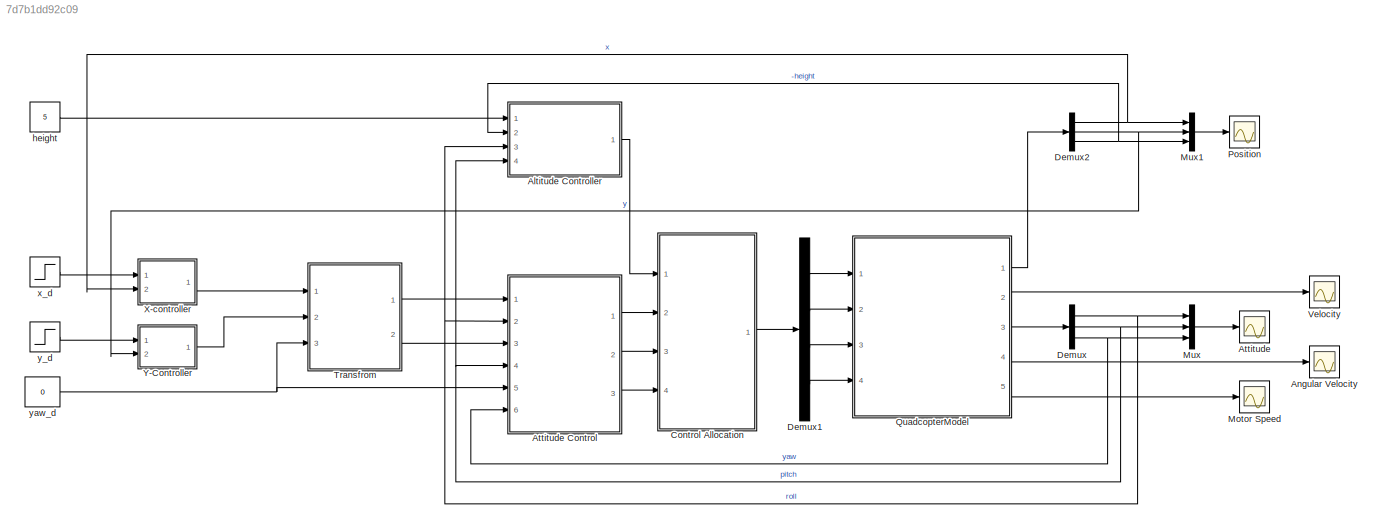
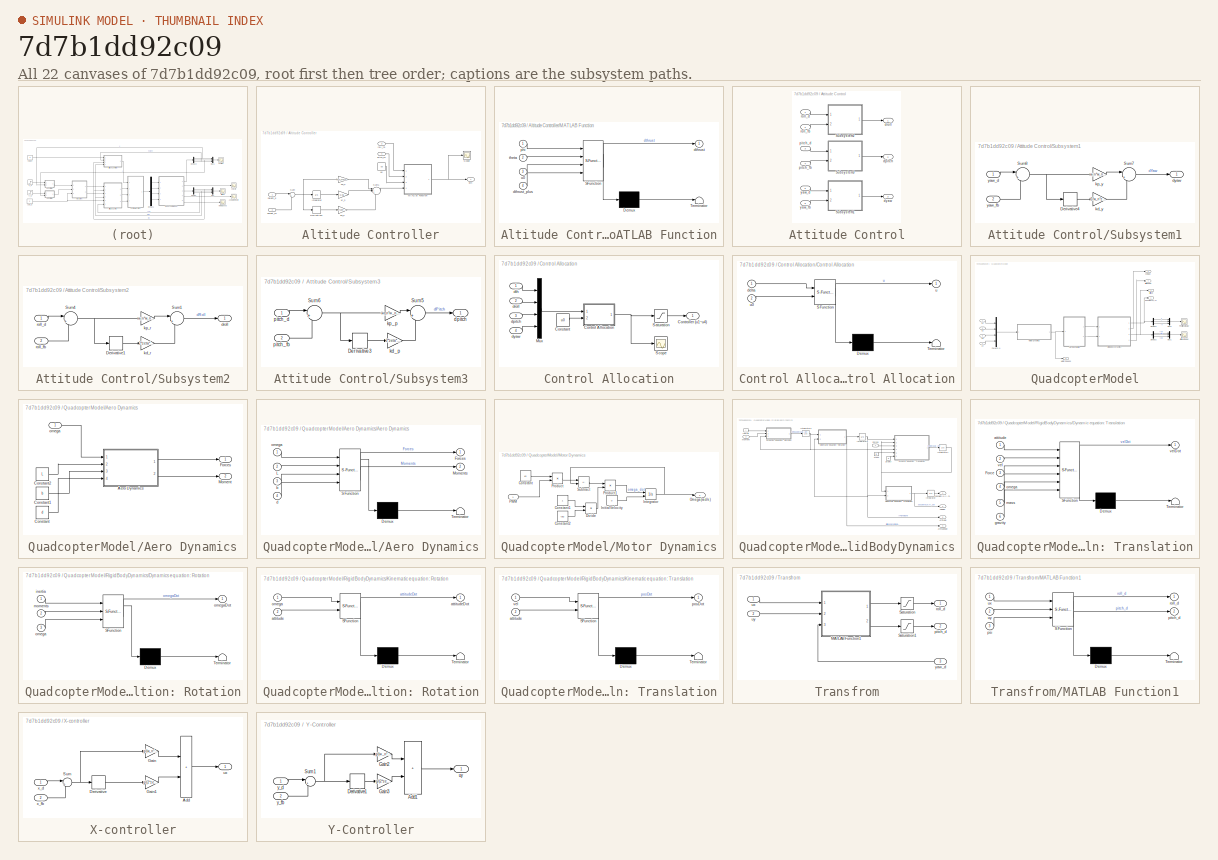
[diagram: thumbnail index - all 22 canvases of the model, root first then tree order]
MODEL slx_7d7b1dd92c09
KIND model
CONFIG AbsTol = auto
CONFIG EnableMultiTasking = off
CONFIG FixedStep = auto
CONFIG InitFcn = parameters
CONFIG MaxStep = auto
CONFIG MinStep = auto
CONFIG RelTol = 1e-3
CONFIG SampleTimeConstraint = Unconstrained
CONFIG Solver = VariableStepAuto
CONFIG SolverName = VariableStepAuto
CONFIG StartTime = 0.0
CONFIG StopTime = 50
BLOCK [SubSystem] Altitude Controller
  Ports = [4, 1]
  RequestExecContextInheritance = off
BLOCK [Derivative] Altitude Controller/Derivative1
BLOCK [Integrator] Altitude Controller/Integrator
  Ports = [1, 1]
BLOCK [SubSystem] Altitude Controller/MATLAB Function
  ErrorFcn = Stateflow.Translate.translate
  PermitHierarchicalResolution = ExplicitOnly
  Ports = [4, 1]
  RequestExecContextInheritance = off
  SFBlockType = MATLAB Function
  TreatAsAtomicUnit = on
BLOCK [Demux] Altitude Controller/MATLAB Function/ Demux 
  Outputs = 1
  Ports = [1, 1]
BLOCK [S-Function] Altitude Controller/MATLAB Function/ SFunction 
  EnableBusSupport = on
  FunctionName = sf_sfun
  PortCounts = [4 2]
  Ports = [4, 2]
  SFcnIsStateOwnerBlock = off
  SFunctionDeploymentMode = off
  Tag = Stateflow S-Function QuadcopterController 4
BLOCK [Terminator] Altitude Controller/MATLAB Function/ Terminator 
BLOCK [Outport] Altitude Controller/MATLAB Function/dthrust
BLOCK [Inport] Altitude Controller/MATLAB Function/dthrust_plus
  Port = 4
BLOCK [Inport] Altitude Controller/MATLAB Function/phi
BLOCK [Inport] Altitude Controller/MATLAB Function/theta
  Port = 2
BLOCK [Inport] Altitude Controller/MATLAB Function/u0
  Port = 3
BLOCK [Scope] Altitude Controller/Scope
  Floating = off
  NumInputPorts = 1
  Ports = [1]
  ScopeSpecificationString = Simulink.scopes.TimeScopeBlockCfg('CurrentConfiguration', extmgr.ConfigurationSet(extmgr.Configuration('Core','General UI',true),extmgr.Configuration('Core','Source UI',true),extmgr.Configuration('Sources','WiredSimulink',true,'DataLoggingVariableName','ScopeData3'),extmgr.Configuration('Visuals','Time Domain',true,'SerializedDisplays',{struct('MinYLimReal','-0.03743','MaxYLimReal','1.12127','YLab...<+1374ch>
BLOCK [Sum] Altitude Controller/Sum
  Inputs = |++
  Ports = [2, 1]
BLOCK [Sum] Altitude Controller/Sum1
  Inputs = |+++
  Ports = [3, 1]
BLOCK [Outport] Altitude Controller/dth
BLOCK [Inport] Altitude Controller/height_d
BLOCK [Inport] Altitude Controller/height_fb
  Port = 2
BLOCK [Gain] Altitude Controller/kd_h
  Gain = 2*kxih*wh_n*m/(4*Kth)
BLOCK [Gain] Altitude Controller/ki_h
  Gain = 0.05
BLOCK [Gain] Altitude Controller/kp_h
  Gain = wh_n*wh_n*m/(4*Kth)
BLOCK [Inport] Altitude Controller/pitch_fb
  Port = 4
BLOCK [Inport] Altitude Controller/roll_fb
  Port = 3
BLOCK [Constant] Altitude Controller/u0
  Value = u0
BLOCK [Scope] Angular Velocity
  Floating = off
  NumInputPorts = 1
  Ports = [1]
  ScopeSpecificationString = Simulink.scopes.TimeScopeBlockCfg('CurrentConfiguration', extmgr.ConfigurationSet(extmgr.Configuration('Core','General UI',true),extmgr.Configuration('Core','Source UI',true),extmgr.Configuration('Sources','WiredSimulink',true,'DataLoggingVariableName','ScopeData1'),extmgr.Configuration('Visuals','Time Domain',true,'SerializedDisplays',{struct('MinYLimReal','-3.62848','MaxYLimReal','3.09906','YLab...<+1605ch>
BLOCK [Scope] Attitude
  Floating = off
  NumInputPorts = 1
  Ports = [1]
  ScopeSpecificationString = Simulink.scopes.TimeScopeBlockCfg('CurrentConfiguration', extmgr.ConfigurationSet(extmgr.Configuration('Core','General UI',true),extmgr.Configuration('Core','Source UI',true),extmgr.Configuration('Sources','WiredSimulink',true),extmgr.Configuration('Visuals','Time Domain',true,'SerializedDisplays',{struct('MinYLimReal','-0.39193','MaxYLimReal','0.43434','YLabelReal','','MinYLimMag','0.00000','MaxY...<+1409ch>
BLOCK [SubSystem] Attitude Control
  Ports = [6, 3]
  RequestExecContextInheritance = off
BLOCK [SubSystem] Attitude Control/Subsystem1
  Ports = [2, 1]
  RequestExecContextInheritance = off
BLOCK [Derivative] Attitude Control/Subsystem1/Derivative4
BLOCK [Sum] Attitude Control/Subsystem1/Sum7
  Inputs = |++
  Ports = [2, 1]
BLOCK [Sum] Attitude Control/Subsystem1/Sum8
  Inputs = |+-
  Ports = [2, 1]
BLOCK [Outport] Attitude Control/Subsystem1/dyaw
BLOCK [Gain] Attitude Control/Subsystem1/kd_y
  Gain = 2*w_n*zeta*Iz/(4*d*lambda)
BLOCK [Gain] Attitude Control/Subsystem1/kp_y
  Gain = w_n*w_n*Iz/(4*d*lambda)
BLOCK [Inport] Attitude Control/Subsystem1/yaw_d
BLOCK [Inport] Attitude Control/Subsystem1/yaw_fb
  Port = 2
BLOCK [SubSystem] Attitude Control/Subsystem2
  Ports = [2, 1]
  RequestExecContextInheritance = off
BLOCK [Derivative] Attitude Control/Subsystem2/Derivative1
BLOCK [Sum] Attitude Control/Subsystem2/Sum1
  Inputs = |++
  Ports = [2, 1]
BLOCK [Sum] Attitude Control/Subsystem2/Sum4
  Inputs = |+-
  Ports = [2, 1]
BLOCK [Outport] Attitude Control/Subsystem2/droll
BLOCK [Gain] Attitude Control/Subsystem2/kd_r
  Gain = 2*zeta*w_n*Ix/(2*Kth*L)
BLOCK [Gain] Attitude Control/Subsystem2/kp_r
  Gain = w_n*w_n*Ix/(2*Kth*L)
BLOCK [Inport] Attitude Control/Subsystem2/roll_d
BLOCK [Inport] Attitude Control/Subsystem2/roll_fb
  Port = 2
BLOCK [SubSystem] Attitude Control/Subsystem3
  Ports = [2, 1]
  RequestExecContextInheritance = off
BLOCK [Derivative] Attitude Control/Subsystem3/Derivative3
BLOCK [Sum] Attitude Control/Subsystem3/Sum5
  Inputs = |++
  Ports = [2, 1]
BLOCK [Sum] Attitude Control/Subsystem3/Sum6
  Inputs = |+-
  Ports = [2, 1]
BLOCK [Outport] Attitude Control/Subsystem3/dpitch
BLOCK [Gain] Attitude Control/Subsystem3/kd_p
  Gain = 2*zeta*w_n*Iy/(2*Kth*L)
BLOCK [Gain] Attitude Control/Subsystem3/kp_p
  Gain = w_n*w_n*Iy/(2*Kth*L)
BLOCK [Inport] Attitude Control/Subsystem3/pitch_d
BLOCK [Inport] Attitude Control/Subsystem3/pitch_fb
  Port = 2
BLOCK [Outport] Attitude Control/dpitch
  Port = 2
BLOCK [Outport] Attitude Control/droll
BLOCK [Outport] Attitude Control/dyaw
  Port = 3
BLOCK [Inport] Attitude Control/pitch_d
  Port = 3
BLOCK [Inport] Attitude Control/pitch_fb
  Port = 4
BLOCK [Inport] Attitude Control/roll_d
BLOCK [Inport] Attitude Control/roll_fb
  Port = 2
BLOCK [Inport] Attitude Control/yaw_d
  Port = 5
BLOCK [Inport] Attitude Control/yaw_fb
  Port = 6
BLOCK [SubSystem] Control Allocation
  Ports = [4, 1]
  RequestExecContextInheritance = off
BLOCK [Constant] Control Allocation/Constant
  Value = u0
BLOCK [SubSystem] Control Allocation/Control Allocation
  ErrorFcn = Stateflow.Translate.translate
  PermitHierarchicalResolution = ExplicitOnly
  Ports = [2, 1]
  RequestExecContextInheritance = off
  SFBlockType = MATLAB Function
  TreatAsAtomicUnit = on
BLOCK [Demux] Control Allocation/Control Allocation/ Demux 
  Outputs = 1
  Ports = [1, 1]
BLOCK [S-Function] Control Allocation/Control Allocation/ SFunction 
  EnableBusSupport = on
  FunctionName = sf_sfun
  PortCounts = [2 2]
  Ports = [2, 2]
  SFcnIsStateOwnerBlock = off
  SFunctionDeploymentMode = off
  Tag = Stateflow S-Function QuadcopterController 3
BLOCK [Terminator] Control Allocation/Control Allocation/ Terminator 
BLOCK [Inport] Control Allocation/Control Allocation/delta
BLOCK [Outport] Control Allocation/Control Allocation/u
BLOCK [Inport] Control Allocation/Control Allocation/u0
  Port = 2
BLOCK [Outport] Control Allocation/Controller (u1~u4)
BLOCK [Mux] Control Allocation/Mux
  DisplayOption = bar
  Ports = [4, 1]
BLOCK [Saturate] Control Allocation/Saturation
  LowerLimit = 0
  UpperLimit = 1
  ZeroCross = off
BLOCK [Scope] Control Allocation/Scope
  Floating = off
  NumInputPorts = 1
  Ports = [1]
  ScopeSpecificationString = Simulink.scopes.TimeScopeBlockCfg('CurrentConfiguration', extmgr.ConfigurationSet(extmgr.Configuration('Core','General UI',true),extmgr.Configuration('Core','Source UI',true),extmgr.Configuration('Sources','WiredSimulink',true,'DataLoggingVariableName','ScopeData2'),extmgr.Configuration('Visuals','Time Domain',true,'SerializedDisplays',{struct('MinYLimReal','0.144','MaxYLimReal','2.75506','YLabelR...<+1490ch>
BLOCK [Inport] Control Allocation/dpitch
  Port = 3
BLOCK [Inport] Control Allocation/droll
  Port = 2
BLOCK [Inport] Control Allocation/dth
BLOCK [Inport] Control Allocation/dyaw
  Port = 4
BLOCK [Demux] Demux
  Outputs = 3
  Ports = [1, 3]
BLOCK [Demux] Demux1
  Ports = [1, 4]
BLOCK [Demux] Demux2
  Outputs = 3
  Ports = [1, 3]
BLOCK [Scope] Motor Speed
  Floating = off
  NumInputPorts = 1
  Ports = [1]
  ScopeSpecificationString = Simulink.scopes.TimeScopeBlockCfg('CurrentConfiguration', extmgr.ConfigurationSet(extmgr.Configuration('Core','General UI',true),extmgr.Configuration('Core','Source UI',true),extmgr.Configuration('Sources','WiredSimulink',true,'DataLoggingVariableName','ScopeData1'),extmgr.Configuration('Visuals','Time Domain',true,'SerializedDisplays',{struct('MinYLimReal','192.09255','MaxYLimReal','712.96711','Y...<+1620ch>
BLOCK [Mux] Mux
  DisplayOption = bar
  Inputs = 3
  Ports = [3, 1]
BLOCK [Mux] Mux1
  DisplayOption = bar
  Inputs = 3
  Ports = [3, 1]
BLOCK [Scope] Position
  Floating = off
  NumInputPorts = 1
  Ports = [1]
  ScopeSpecificationString = Simulink.scopes.TimeScopeBlockCfg('CurrentConfiguration', extmgr.ConfigurationSet(extmgr.Configuration('Core','General UI',true),extmgr.Configuration('Core','Source UI',true),extmgr.Configuration('Sources','WiredSimulink',true,'DataLoggingVariableName','ScopeData3'),extmgr.Configuration('Visuals','Time Domain',true,'SerializedDisplays',{struct('MinYLimReal','-6.62269','MaxYLimReal','8.51292','YLab...<+1447ch>
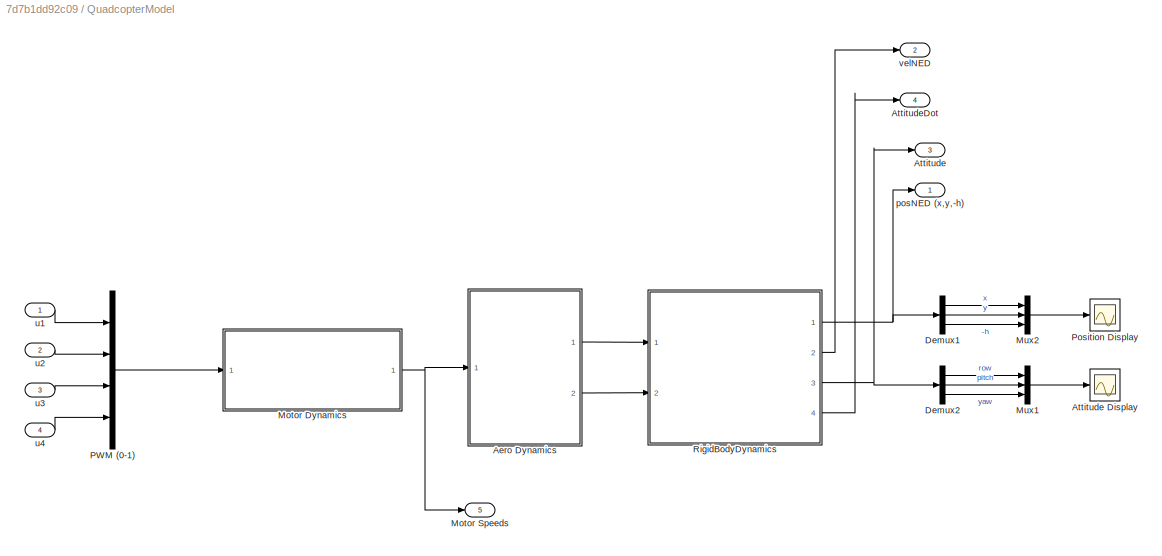
BLOCK [SubSystem] QuadcopterModel
  Ports = [4, 5]
  RequestExecContextInheritance = off
BLOCK [SubSystem] QuadcopterModel/Aero Dynamics
  Ports = [1, 2]
  RequestExecContextInheritance = off
BLOCK [SubSystem] QuadcopterModel/Aero Dynamics/Aero Dynamics
  ErrorFcn = Stateflow.Translate.translate
  PermitHierarchicalResolution = ExplicitOnly
  Ports = [4, 2]
  RequestExecContextInheritance = off
  SFBlockType = MATLAB Function
  TreatAsAtomicUnit = on
BLOCK [Demux] QuadcopterModel/Aero Dynamics/Aero Dynamics/ Demux 
  Outputs = 1
  Ports = [1, 1]
BLOCK [S-Function] QuadcopterModel/Aero Dynamics/Aero Dynamics/ SFunction 
  EnableBusSupport = on
  FunctionName = sf_sfun
  PortCounts = [4 3]
  Ports = [4, 3]
  SFcnIsStateOwnerBlock = off
  SFunctionDeploymentMode = off
  Tag = Stateflow S-Function QuadcopterController 1
BLOCK [Terminator] QuadcopterModel/Aero Dynamics/Aero Dynamics/ Terminator 
BLOCK [Outport] QuadcopterModel/Aero Dynamics/Aero Dynamics/Forces
BLOCK [Inport] QuadcopterModel/Aero Dynamics/Aero Dynamics/L
  Port = 2
BLOCK [Outport] QuadcopterModel/Aero Dynamics/Aero Dynamics/Moments
  Port = 2
BLOCK [Inport] QuadcopterModel/Aero Dynamics/Aero Dynamics/b
  Port = 3
BLOCK [Inport] QuadcopterModel/Aero Dynamics/Aero Dynamics/d
  Port = 4
BLOCK [Inport] QuadcopterModel/Aero Dynamics/Aero Dynamics/omega
BLOCK [Constant] QuadcopterModel/Aero Dynamics/Constant
  Value = d
BLOCK [Constant] QuadcopterModel/Aero Dynamics/Constant1
  Value = b
BLOCK [Constant] QuadcopterModel/Aero Dynamics/Constant2
  Value = L
BLOCK [Outport] QuadcopterModel/Aero Dynamics/Forces
BLOCK [Outport] QuadcopterModel/Aero Dynamics/Moment
  Port = 2
BLOCK [Inport] QuadcopterModel/Aero Dynamics/omega
BLOCK [Outport] QuadcopterModel/Attitude
  Port = 3
BLOCK [Scope] QuadcopterModel/Attitude Display
  Floating = off
  NumInputPorts = 1
  Ports = [1]
  ScopeSpecificationString = Simulink.scopes.TimeScopeBlockCfg('CurrentConfiguration', extmgr.ConfigurationSet(extmgr.Configuration('Core','General UI',true),extmgr.Configuration('Core','Source UI',true),extmgr.Configuration('Sources','WiredSimulink',true),extmgr.Configuration('Visuals','Time Domain',true,'SerializedDisplays',{struct('MinYLimReal','-6.91711','MaxYLimReal','17.2595','YLabelReal','','MinYLimMag','0.00000','MaxY...<+1406ch>
BLOCK [Outport] QuadcopterModel/AttitudeDot
  Port = 4
BLOCK [Demux] QuadcopterModel/Demux1
  Outputs = 3
  Ports = [1, 3]
BLOCK [Demux] QuadcopterModel/Demux2
  Outputs = 3
  Ports = [1, 3]
BLOCK [SubSystem] QuadcopterModel/Motor Dynamics
  Ports = [1, 1]
  RequestExecContextInheritance = off
BLOCK [Constant] QuadcopterModel/Motor Dynamics/Constant
  Value = ks
BLOCK [Constant] QuadcopterModel/Motor Dynamics/Constant1
BLOCK [Constant] QuadcopterModel/Motor Dynamics/Constant2
  Value = tau
BLOCK [Product] QuadcopterModel/Motor Dynamics/Divide
  Inputs = */
  Ports = [2, 1]
BLOCK [Constant] QuadcopterModel/Motor Dynamics/InitialVelocity
  Value = 0
BLOCK [Integrator] QuadcopterModel/Motor Dynamics/Integrator
  InitialConditionSource = external
  Ports = [2, 1]
BLOCK [Outport] QuadcopterModel/Motor Dynamics/Omega(rad//s)
BLOCK [Inport] QuadcopterModel/Motor Dynamics/PWM
BLOCK [Product] QuadcopterModel/Motor Dynamics/Product
  Ports = [2, 1]
BLOCK [Product] QuadcopterModel/Motor Dynamics/Product1
  Ports = [2, 1]
BLOCK [Sum] QuadcopterModel/Motor Dynamics/Subtract
  IconShape = rectangular
  Inputs = +-
  Ports = [2, 1]
BLOCK [Outport] QuadcopterModel/Motor Speeds
  Port = 5
BLOCK [Mux] QuadcopterModel/Mux1
  DisplayOption = bar
  Inputs = 3
  Ports = [3, 1]
BLOCK [Mux] QuadcopterModel/Mux2
  DisplayOption = bar
  Inputs = 3
  Ports = [3, 1]
BLOCK [Mux] QuadcopterModel/PWM (0-1)
  DisplayOption = bar
  Ports = [4, 1]
BLOCK [Scope] QuadcopterModel/Position Display
  Floating = off
  NumInputPorts = 1
  Ports = [1]
  ScopeSpecificationString = Simulink.scopes.TimeScopeBlockCfg('CurrentConfiguration', extmgr.ConfigurationSet(extmgr.Configuration('Core','General UI',true),extmgr.Configuration('Core','Source UI',true),extmgr.Configuration('Sources','WiredSimulink',true,'DataLoggingVariableName','ScopeData1'),extmgr.Configuration('Visuals','Time Domain',true,'SerializedDisplays',{struct('MinYLimReal','-55.23126','MaxYLimReal','492.49952','Y...<+1406ch>
BLOCK [SubSystem] QuadcopterModel/RigidBodyDynamics
  Ports = [2, 4]
  RequestExecContextInheritance = off
BLOCK [Outport] QuadcopterModel/RigidBodyDynamics/Attitude
  Port = 3
BLOCK [Outport] QuadcopterModel/RigidBodyDynamics/AttitudeDot
  Port = 4
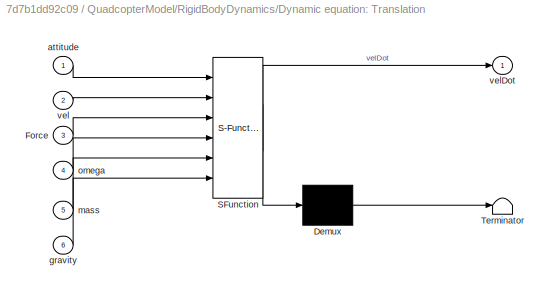
BLOCK [SubSystem] QuadcopterModel/RigidBodyDynamics/Dynamic equation: Translation
  ErrorFcn = Stateflow.Translate.translate
  PermitHierarchicalResolution = ExplicitOnly
  Ports = [6, 1]
  RequestExecContextInheritance = off
  SFBlockType = MATLAB Function
  TreatAsAtomicUnit = on
BLOCK [Demux] QuadcopterModel/RigidBodyDynamics/Dynamic equation: Translation/ Demux 
  Outputs = 1
  Ports = [1, 1]
BLOCK [S-Function] QuadcopterModel/RigidBodyDynamics/Dynamic equation: Translation/ SFunction 
  EnableBusSupport = on
  FunctionName = sf_sfun
  PortCounts = [6 2]
  Ports = [6, 2]
  SFcnIsStateOwnerBlock = off
  SFunctionDeploymentMode = off
  Tag = Stateflow S-Function QuadcopterController 10
BLOCK [Terminator] QuadcopterModel/RigidBodyDynamics/Dynamic equation: Translation/ Terminator 
BLOCK [Inport] QuadcopterModel/RigidBodyDynamics/Dynamic equation: Translation/Force
  Port = 3
BLOCK [Inport] QuadcopterModel/RigidBodyDynamics/Dynamic equation: Translation/attitude
BLOCK [Inport] QuadcopterModel/RigidBodyDynamics/Dynamic equation: Translation/gravity
  Port = 6
BLOCK [Inport] QuadcopterModel/RigidBodyDynamics/Dynamic equation: Translation/mass
  Port = 5
BLOCK [Inport] QuadcopterModel/RigidBodyDynamics/Dynamic equation: Translation/omega
  Port = 4
BLOCK [Inport] QuadcopterModel/RigidBodyDynamics/Dynamic equation: Translation/vel
  Port = 2
BLOCK [Outport] QuadcopterModel/RigidBodyDynamics/Dynamic equation: Translation/velDot
BLOCK [SubSystem] QuadcopterModel/RigidBodyDynamics/Dynamics equation: Rotation
  ErrorFcn = Stateflow.Translate.translate
  PermitHierarchicalResolution = ExplicitOnly
  Ports = [3, 1]
  RequestExecContextInheritance = off
  SFBlockType = MATLAB Function
  TreatAsAtomicUnit = on
BLOCK [Demux] QuadcopterModel/RigidBodyDynamics/Dynamics equation: Rotation/ Demux 
  Outputs = 1
  Ports = [1, 1]
BLOCK [S-Function] QuadcopterModel/RigidBodyDynamics/Dynamics equation: Rotation/ SFunction 
  EnableBusSupport = on
  FunctionName = sf_sfun
  PortCounts = [3 2]
  Ports = [3, 2]
  SFcnIsStateOwnerBlock = off
  SFunctionDeploymentMode = off
  Tag = Stateflow S-Function QuadcopterController 11
BLOCK [Terminator] QuadcopterModel/RigidBodyDynamics/Dynamics equation: Rotation/ Terminator 
BLOCK [Inport] QuadcopterModel/RigidBodyDynamics/Dynamics equation: Rotation/inertia
BLOCK [Inport] QuadcopterModel/RigidBodyDynamics/Dynamics equation: Rotation/moments
  Port = 2
BLOCK [Inport] QuadcopterModel/RigidBodyDynamics/Dynamics equation: Rotation/omega
  Port = 3
BLOCK [Outport] QuadcopterModel/RigidBodyDynamics/Dynamics equation: Rotation/omegaDot
BLOCK [Inport] QuadcopterModel/RigidBodyDynamics/Forces
BLOCK [Constant] QuadcopterModel/RigidBodyDynamics/Inertia
  Value = I
BLOCK [Integrator] QuadcopterModel/RigidBodyDynamics/Integrator
  InitialCondition = posInit
  Ports = [1, 1]
BLOCK [Integrator] QuadcopterModel/RigidBodyDynamics/Integrator1
  InitialCondition = velInit
  Ports = [1, 1]
BLOCK [Integrator] QuadcopterModel/RigidBodyDynamics/Integrator2
  InitialCondition = attitudeInit
  Ports = [1, 1]
BLOCK [Integrator] QuadcopterModel/RigidBodyDynamics/Integrator3
  InitialCondition = omegaInit
  Ports = [1, 1]
BLOCK [SubSystem] QuadcopterModel/RigidBodyDynamics/Kinematic equation: Rotation
  ErrorFcn = Stateflow.Translate.translate
  PermitHierarchicalResolution = ExplicitOnly
  Ports = [2, 1]
  RequestExecContextInheritance = off
  SFBlockType = MATLAB Function
  TreatAsAtomicUnit = on
BLOCK [Demux] QuadcopterModel/RigidBodyDynamics/Kinematic equation: Rotation/ Demux 
  Outputs = 1
  Ports = [1, 1]
BLOCK [S-Function] QuadcopterModel/RigidBodyDynamics/Kinematic equation: Rotation/ SFunction 
  EnableBusSupport = on
  FunctionName = sf_sfun
  PortCounts = [2 2]
  Ports = [2, 2]
  SFcnIsStateOwnerBlock = off
  SFunctionDeploymentMode = off
  Tag = Stateflow S-Function QuadcopterController 12
BLOCK [Terminator] QuadcopterModel/RigidBodyDynamics/Kinematic equation: Rotation/ Terminator 
BLOCK [Inport] QuadcopterModel/RigidBodyDynamics/Kinematic equation: Rotation/attitude
  Port = 2
BLOCK [Outport] QuadcopterModel/RigidBodyDynamics/Kinematic equation: Rotation/attitudeDot
BLOCK [Inport] QuadcopterModel/RigidBodyDynamics/Kinematic equation: Rotation/omega
BLOCK [SubSystem] QuadcopterModel/RigidBodyDynamics/Kinematic equation: Translation
  ErrorFcn = Stateflow.Translate.translate
  PermitHierarchicalResolution = ExplicitOnly
  Ports = [2, 1]
  RequestExecContextInheritance = off
  SFBlockType = MATLAB Function
  TreatAsAtomicUnit = on
BLOCK [Demux] QuadcopterModel/RigidBodyDynamics/Kinematic equation: Translation/ Demux 
  Outputs = 1
  Ports = [1, 1]
BLOCK [S-Function] QuadcopterModel/RigidBodyDynamics/Kinematic equation: Translation/ SFunction 
  EnableBusSupport = on
  FunctionName = sf_sfun
  PortCounts = [2 2]
  Ports = [2, 2]
  SFcnIsStateOwnerBlock = off
  SFunctionDeploymentMode = off
  Tag = Stateflow S-Function QuadcopterController 13
BLOCK [Terminator] QuadcopterModel/RigidBodyDynamics/Kinematic equation: Translation/ Terminator 
BLOCK [Inport] QuadcopterModel/RigidBodyDynamics/Kinematic equation: Translation/attitude
  Port = 2
BLOCK [Outport] QuadcopterModel/RigidBodyDynamics/Kinematic equation: Translation/posDot
BLOCK [Inport] QuadcopterModel/RigidBodyDynamics/Kinematic equation: Translation/vel
BLOCK [Inport] QuadcopterModel/RigidBodyDynamics/Moment
  Port = 2
BLOCK [Constant] QuadcopterModel/RigidBodyDynamics/gravity
  Value = g
BLOCK [Constant] QuadcopterModel/RigidBodyDynamics/mass
  Value = m
BLOCK [Outport] QuadcopterModel/RigidBodyDynamics/posNED (x,y,-h)
BLOCK [Outport] QuadcopterModel/RigidBodyDynamics/velNED
  Port = 2
BLOCK [Outport] QuadcopterModel/posNED (x,y,-h)
BLOCK [Inport] QuadcopterModel/u1
BLOCK [Inport] QuadcopterModel/u2
  Port = 2
BLOCK [Inport] QuadcopterModel/u3
  Port = 3
BLOCK [Inport] QuadcopterModel/u4
  Port = 4
BLOCK [Outport] QuadcopterModel/velNED
  Port = 2
BLOCK [SubSystem] Transfrom
  Ports = [3, 2]
  RequestExecContextInheritance = off
BLOCK [SubSystem] Transfrom/MATLAB Function1
  ErrorFcn = Stateflow.Translate.translate
  PermitHierarchicalResolution = ExplicitOnly
  Ports = [3, 2]
  RequestExecContextInheritance = off
  SFBlockType = MATLAB Function
  TreatAsAtomicUnit = on
BLOCK [Demux] Transfrom/MATLAB Function1/ Demux 
  Outputs = 1
  Ports = [1, 1]
BLOCK [S-Function] Transfrom/MATLAB Function1/ SFunction 
  EnableBusSupport = on
  FunctionName = sf_sfun
  PortCounts = [3 3]
  Ports = [3, 3]
  SFcnIsStateOwnerBlock = off
  SFunctionDeploymentMode = off
  Tag = Stateflow S-Function QuadcopterController 9
BLOCK [Terminator] Transfrom/MATLAB Function1/ Terminator 
BLOCK [Outport] Transfrom/MATLAB Function1/pitch_d
  Port = 2
BLOCK [Inport] Transfrom/MATLAB Function1/psi
  Port = 3
BLOCK [Outport] Transfrom/MATLAB Function1/roll_d
BLOCK [Inport] Transfrom/MATLAB Function1/ux
BLOCK [Inport] Transfrom/MATLAB Function1/uy
  Port = 2
BLOCK [Saturate] Transfrom/Saturation
  LowerLimit = -pi/8
  UpperLimit = pi/8
BLOCK [Saturate] Transfrom/Saturation1
  LowerLimit = -pi/8
  UpperLimit = pi/8
BLOCK [Outport] Transfrom/pitch_d
  Port = 2
BLOCK [Outport] Transfrom/roll_d
BLOCK [Inport] Transfrom/ux
BLOCK [Inport] Transfrom/uy
  Port = 2
BLOCK [Inport] Transfrom/yaw_d
  Port = 3
BLOCK [Scope] Velocity
  Floating = off
  NumInputPorts = 1
  Ports = [1]
  ScopeSpecificationString = Simulink.scopes.TimeScopeBlockCfg('CurrentConfiguration', extmgr.ConfigurationSet(extmgr.Configuration('Core','General UI',true),extmgr.Configuration('Core','Source UI',true),extmgr.Configuration('Sources','WiredSimulink',true,'DataLoggingVariableName','ScopeData2'),extmgr.Configuration('Visuals','Time Domain',true,'SerializedDisplays',{struct('MinYLimReal','-5.24505','MaxYLimReal','1.91937','YLab...<+1546ch>
BLOCK [SubSystem] X-controller
  Ports = [2, 1]
  RequestExecContextInheritance = off
BLOCK [Sum] X-controller/Add
  IconShape = rectangular
  Ports = [2, 1]
BLOCK [Derivative] X-controller/Derivative
BLOCK [Gain] X-controller/Gain  
  Gain = g/(w_n*w_n)
BLOCK [Gain] X-controller/Gain1
  Gain = g/(2*zeta*w_n)
BLOCK [Sum] X-controller/Sum
  Inputs = |+-
  Ports = [2, 1]
BLOCK [Outport] X-controller/ux
BLOCK [Inport] X-controller/x_d
BLOCK [Inport] X-controller/x_fb
  Port = 2
BLOCK [SubSystem] Y-Controller
  Ports = [2, 1]
  RequestExecContextInheritance = off
BLOCK [Sum] Y-Controller/Add1
  IconShape = rectangular
  Ports = [2, 1]
BLOCK [Derivative] Y-Controller/Derivative1
BLOCK [Gain] Y-Controller/Gain2
  Gain = g/(w_n*w_n)
BLOCK [Gain] Y-Controller/Gain3
  Gain = g/(2*zeta*w_n)
BLOCK [Sum] Y-Controller/Sum1
  Inputs = |+-
  Ports = [2, 1]
BLOCK [Outport] Y-Controller/uy
BLOCK [Inport] Y-Controller/y_d
BLOCK [Inport] Y-Controller/y_fb
  Port = 2
BLOCK [Constant] height
  Value = 5
BLOCK [Step] x_d
  After = 5
  SampleTime = 0
  Time = 0
BLOCK [Step] y_d
  After = 7
  SampleTime = 0
  Time = 0
BLOCK [Constant] yaw_d
  Value = 0
LINE Altitude Controller/Derivative1:1 -> Altitude Controller/kd_h:1
LINE Altitude Controller/Integrator:1 -> Altitude Controller/ki_h:1
NET Altitude Controller/MATLAB Function:1 -> Altitude Controller/Scope:1, Altitude Controller/dth:1
LINE Altitude Controller/Sum1:1 -> Altitude Controller/MATLAB Function:4
NET Altitude Controller/Sum:1 -> Altitude Controller/Derivative1:1, Altitude Controller/Integrator:1, Altitude Controller/kp_h:1
LINE Altitude Controller/height_d:1 -> Altitude Controller/Sum:1
LINE Altitude Controller/height_fb:1 -> Altitude Controller/Sum:2
LINE Altitude Controller/kd_h:1 -> Altitude Controller/Sum1:3
LINE Altitude Controller/ki_h:1 -> Altitude Controller/Sum1:2
LINE Altitude Controller/kp_h:1 -> Altitude Controller/Sum1:1
LINE Altitude Controller/pitch_fb:1 -> Altitude Controller/MATLAB Function:2
LINE Altitude Controller/roll_fb:1 -> Altitude Controller/MATLAB Function:1
LINE Altitude Controller/u0:1 -> Altitude Controller/MATLAB Function:3
LINE Altitude Controller:1 -> Control Allocation:1
LINE Attitude Control/Subsystem1/Derivative4:1 -> Attitude Control/Subsystem1/kd_y:1
LINE Attitude Control/Subsystem1/Sum7:1 -> Attitude Control/Subsystem1/dyaw:1
NET Attitude Control/Subsystem1/Sum8:1 -> Attitude Control/Subsystem1/Derivative4:1, Attitude Control/Subsystem1/kp_y:1
LINE Attitude Control/Subsystem1/kd_y:1 -> Attitude Control/Subsystem1/Sum7:2
LINE Attitude Control/Subsystem1/kp_y:1 -> Attitude Control/Subsystem1/Sum7:1
LINE Attitude Control/Subsystem1/yaw_d:1 -> Attitude Control/Subsystem1/Sum8:1
LINE Attitude Control/Subsystem1/yaw_fb:1 -> Attitude Control/Subsystem1/Sum8:2
LINE Attitude Control/Subsystem1:1 -> Attitude Control/dyaw:1
LINE Attitude Control/Subsystem2/Derivative1:1 -> Attitude Control/Subsystem2/kd_r:1
LINE Attitude Control/Subsystem2/Sum1:1 -> Attitude Control/Subsystem2/droll:1
NET Attitude Control/Subsystem2/Sum4:1 -> Attitude Control/Subsystem2/Derivative1:1, Attitude Control/Subsystem2/kp_r:1
LINE Attitude Control/Subsystem2/kd_r:1 -> Attitude Control/Subsystem2/Sum1:2
LINE Attitude Control/Subsystem2/kp_r:1 -> Attitude Control/Subsystem2/Sum1:1
LINE Attitude Control/Subsystem2/roll_d:1 -> Attitude Control/Subsystem2/Sum4:1
LINE Attitude Control/Subsystem2/roll_fb:1 -> Attitude Control/Subsystem2/Sum4:2
LINE Attitude Control/Subsystem2:1 -> Attitude Control/droll:1
LINE Attitude Control/Subsystem3/Derivative3:1 -> Attitude Control/Subsystem3/kd_p:1
LINE Attitude Control/Subsystem3/Sum5:1 -> Attitude Control/Subsystem3/dpitch:1
NET Attitude Control/Subsystem3/Sum6:1 -> Attitude Control/Subsystem3/Derivative3:1, Attitude Control/Subsystem3/kp_p:1
LINE Attitude Control/Subsystem3/kd_p:1 -> Attitude Control/Subsystem3/Sum5:2
LINE Attitude Control/Subsystem3/kp_p:1 -> Attitude Control/Subsystem3/Sum5:1
LINE Attitude Control/Subsystem3/pitch_d:1 -> Attitude Control/Subsystem3/Sum6:1
LINE Attitude Control/Subsystem3/pitch_fb:1 -> Attitude Control/Subsystem3/Sum6:2
LINE Attitude Control/Subsystem3:1 -> Attitude Control/dpitch:1
LINE Attitude Control/pitch_d:1 -> Attitude Control/Subsystem3:1
LINE Attitude Control/pitch_fb:1 -> Attitude Control/Subsystem3:2
LINE Attitude Control/roll_d:1 -> Attitude Control/Subsystem2:1
LINE Attitude Control/roll_fb:1 -> Attitude Control/Subsystem2:2
LINE Attitude Control/yaw_d:1 -> Attitude Control/Subsystem1:1
LINE Attitude Control/yaw_fb:1 -> Attitude Control/Subsystem1:2
LINE Attitude Control:1 -> Control Allocation:2
LINE Attitude Control:2 -> Control Allocation:3
LINE Attitude Control:3 -> Control Allocation:4
LINE Control Allocation/Constant:1 -> Control Allocation/Control Allocation:2
NET Control Allocation/Control Allocation:1 -> Control Allocation/Saturation:1, Control Allocation/Scope:1
LINE Control Allocation/Mux:1 -> Control Allocation/Control Allocation:1
LINE Control Allocation/Saturation:1 -> Control Allocation/Controller (u1~u4):1
LINE Control Allocation/dpitch:1 -> Control Allocation/Mux:3
LINE Control Allocation/droll:1 -> Control Allocation/Mux:2
LINE Control Allocation/dth:1 -> Control Allocation/Mux:1
LINE Control Allocation/dyaw:1 -> Control Allocation/Mux:4
LINE Control Allocation:1 -> Demux1:1
LINE Demux1:1 -> QuadcopterModel:1
LINE Demux1:2 -> QuadcopterModel:2
LINE Demux1:3 -> QuadcopterModel:3
LINE Demux1:4 -> QuadcopterModel:4
NET Demux2:1 -> Mux1:1, X-controller:2
NET Demux2:2 -> Mux1:2, Y-Controller:2
NET Demux2:3 -> Altitude Controller:2, Mux1:3
NET Demux:1 -> Altitude Controller:3, Attitude Control:2, Mux:1
NET Demux:2 -> Altitude Controller:4, Attitude Control:4, Mux:2
NET Demux:3 -> Attitude Control:6, Mux:3
LINE Mux1:1 -> Position:1
LINE Mux:1 -> Attitude:1
LINE QuadcopterModel/Aero Dynamics/Aero Dynamics:1 -> QuadcopterModel/Aero Dynamics/Forces:1
LINE QuadcopterModel/Aero Dynamics/Aero Dynamics:2 -> QuadcopterModel/Aero Dynamics/Moment:1
LINE QuadcopterModel/Aero Dynamics/Constant1:1 -> QuadcopterModel/Aero Dynamics/Aero Dynamics:3
LINE QuadcopterModel/Aero Dynamics/Constant2:1 -> QuadcopterModel/Aero Dynamics/Aero Dynamics:2
LINE QuadcopterModel/Aero Dynamics/Constant:1 -> QuadcopterModel/Aero Dynamics/Aero Dynamics:4
LINE QuadcopterModel/Aero Dynamics/omega:1 -> QuadcopterModel/Aero Dynamics/Aero Dynamics:1
LINE QuadcopterModel/Aero Dynamics:1 -> QuadcopterModel/RigidBodyDynamics:1
LINE QuadcopterModel/Aero Dynamics:2 -> QuadcopterModel/RigidBodyDynamics:2
LINE QuadcopterModel/Demux1:1 -> QuadcopterModel/Mux2:1
LINE QuadcopterModel/Demux1:2 -> QuadcopterModel/Mux2:2
LINE QuadcopterModel/Demux1:3 -> QuadcopterModel/Mux2:3
LINE QuadcopterModel/Demux2:1 -> QuadcopterModel/Mux1:1
LINE QuadcopterModel/Demux2:2 -> QuadcopterModel/Mux1:2
LINE QuadcopterModel/Demux2:3 -> QuadcopterModel/Mux1:3
LINE QuadcopterModel/Motor Dynamics/Constant1:1 -> QuadcopterModel/Motor Dynamics/Divide:1
LINE QuadcopterModel/Motor Dynamics/Constant2:1 -> QuadcopterModel/Motor Dynamics/Divide:2
LINE QuadcopterModel/Motor Dynamics/Constant:1 -> QuadcopterModel/Motor Dynamics/Product:1
LINE QuadcopterModel/Motor Dynamics/Divide:1 -> QuadcopterModel/Motor Dynamics/Product1:2
LINE QuadcopterModel/Motor Dynamics/InitialVelocity:1 -> QuadcopterModel/Motor Dynamics/Integrator:2
NET QuadcopterModel/Motor Dynamics/Integrator:1 -> QuadcopterModel/Motor Dynamics/Omega(rad//s):1, QuadcopterModel/Motor Dynamics/Subtract:2
LINE QuadcopterModel/Motor Dynamics/PWM:1 -> QuadcopterModel/Motor Dynamics/Product:2
LINE QuadcopterModel/Motor Dynamics/Product1:1 -> QuadcopterModel/Motor Dynamics/Integrator:1
LINE QuadcopterModel/Motor Dynamics/Product:1 -> QuadcopterModel/Motor Dynamics/Subtract:1
LINE QuadcopterModel/Motor Dynamics/Subtract:1 -> QuadcopterModel/Motor Dynamics/Product1:1
NET QuadcopterModel/Motor Dynamics:1 -> QuadcopterModel/Aero Dynamics:1, QuadcopterModel/Motor Speeds:1
LINE QuadcopterModel/Mux1:1 -> QuadcopterModel/Attitude Display:1
LINE QuadcopterModel/Mux2:1 -> QuadcopterModel/Position Display:1
LINE QuadcopterModel/PWM (0-1):1 -> QuadcopterModel/Motor Dynamics:1
LINE QuadcopterModel/RigidBodyDynamics/Dynamic equation: Translation:1 -> QuadcopterModel/RigidBodyDynamics/Integrator1:1
LINE QuadcopterModel/RigidBodyDynamics/Dynamics equation: Rotation:1 -> QuadcopterModel/RigidBodyDynamics/Integrator3:1
LINE QuadcopterModel/RigidBodyDynamics/Forces:1 -> QuadcopterModel/RigidBodyDynamics/Dynamic equation: Translation:3
LINE QuadcopterModel/RigidBodyDynamics/Inertia:1 -> QuadcopterModel/RigidBodyDynamics/Dynamics equation: Rotation:1
NET QuadcopterModel/RigidBodyDynamics/Integrator1:1 -> QuadcopterModel/RigidBodyDynamics/Dynamic equation: Translation:2, QuadcopterModel/RigidBodyDynamics/Kinematic equation: Translation:1
NET QuadcopterModel/RigidBodyDynamics/Integrator2:1 -> QuadcopterModel/RigidBodyDynamics/Attitude:1, QuadcopterModel/RigidBodyDynamics/Dynamic equation: Translation:1, QuadcopterModel/RigidBodyDynamics/Kinematic equation: Rotation:2, QuadcopterModel/RigidBodyDynamics/Kinematic equation: Translation:2
NET QuadcopterModel/RigidBodyDynamics/Integrator3:1 -> QuadcopterModel/RigidBodyDynamics/Dynamic equation: Translation:4, QuadcopterModel/RigidBodyDynamics/Dynamics equation: Rotation:3, QuadcopterModel/RigidBodyDynamics/Kinematic equation: Rotation:1
LINE QuadcopterModel/RigidBodyDynamics/Integrator:1 -> QuadcopterModel/RigidBodyDynamics/posNED (x,y,-h):1
NET QuadcopterModel/RigidBodyDynamics/Kinematic equation: Rotation:1 -> QuadcopterModel/RigidBodyDynamics/AttitudeDot:1, QuadcopterModel/RigidBodyDynamics/Integrator2:1
NET QuadcopterModel/RigidBodyDynamics/Kinematic equation: Translation:1 -> QuadcopterModel/RigidBodyDynamics/Integrator:1, QuadcopterModel/RigidBodyDynamics/velNED:1
LINE QuadcopterModel/RigidBodyDynamics/Moment:1 -> QuadcopterModel/RigidBodyDynamics/Dynamics equation: Rotation:2
LINE QuadcopterModel/RigidBodyDynamics/gravity:1 -> QuadcopterModel/RigidBodyDynamics/Dynamic equation: Translation:6
LINE QuadcopterModel/RigidBodyDynamics/mass:1 -> QuadcopterModel/RigidBodyDynamics/Dynamic equation: Translation:5
NET QuadcopterModel/RigidBodyDynamics:1 -> QuadcopterModel/Demux1:1, QuadcopterModel/posNED (x,y,-h):1
LINE QuadcopterModel/RigidBodyDynamics:2 -> QuadcopterModel/velNED:1
NET QuadcopterModel/RigidBodyDynamics:3 -> QuadcopterModel/Attitude:1, QuadcopterModel/Demux2:1
LINE QuadcopterModel/RigidBodyDynamics:4 -> QuadcopterModel/AttitudeDot:1
LINE QuadcopterModel/u1:1 -> QuadcopterModel/PWM (0-1):1
LINE QuadcopterModel/u2:1 -> QuadcopterModel/PWM (0-1):2
LINE QuadcopterModel/u3:1 -> QuadcopterModel/PWM (0-1):3
LINE QuadcopterModel/u4:1 -> QuadcopterModel/PWM (0-1):4
LINE QuadcopterModel:1 -> Demux2:1
LINE QuadcopterModel:2 -> Velocity:1
LINE QuadcopterModel:3 -> Demux:1
LINE QuadcopterModel:4 -> Angular Velocity:1
LINE QuadcopterModel:5 -> Motor Speed:1
LINE Transfrom/MATLAB Function1:1 -> Transfrom/Saturation:1
LINE Transfrom/MATLAB Function1:2 -> Transfrom/Saturation1:1
LINE Transfrom/Saturation1:1 -> Transfrom/pitch_d:1
LINE Transfrom/Saturation:1 -> Transfrom/roll_d:1
LINE Transfrom/ux:1 -> Transfrom/MATLAB Function1:1
LINE Transfrom/uy:1 -> Transfrom/MATLAB Function1:2
LINE Transfrom/yaw_d:1 -> Transfrom/MATLAB Function1:3
LINE Transfrom:1 -> Attitude Control:1
LINE Transfrom:2 -> Attitude Control:3
LINE X-controller/Add:1 -> X-controller/ux:1
LINE X-controller/Derivative:1 -> X-controller/Gain1:1
LINE X-controller/Gain  :1 -> X-controller/Add:1
LINE X-controller/Gain1:1 -> X-controller/Add:2
NET X-controller/Sum:1 -> X-controller/Derivative:1, X-controller/Gain  :1
LINE X-controller/x_d:1 -> X-controller/Sum:1
LINE X-controller/x_fb:1 -> X-controller/Sum:2
LINE X-controller:1 -> Transfrom:1
LINE Y-Controller/Add1:1 -> Y-Controller/uy:1
LINE Y-Controller/Derivative1:1 -> Y-Controller/Gain3:1
LINE Y-Controller/Gain2:1 -> Y-Controller/Add1:1
LINE Y-Controller/Gain3:1 -> Y-Controller/Add1:2
NET Y-Controller/Sum1:1 -> Y-Controller/Derivative1:1, Y-Controller/Gain2:1
LINE Y-Controller/y_d:1 -> Y-Controller/Sum1:1
LINE Y-Controller/y_fb:1 -> Y-Controller/Sum1:2
LINE Y-Controller:1 -> Transfrom:2
LINE height:1 -> Altitude Controller:1
LINE x_d:1 -> X-controller:1
LINE y_d:1 -> Y-Controller:1
NET yaw_d:1 -> Attitude Control:5, Transfrom:3
note: NET lines group one-source signal fan-out (src -> all destinations, sorted); 1:1 wires keep LINE
CHART QuadcopterModel/Aero Dynamics/Aero Dynamics states=1 transitions=1
  STATE_LABEL 'eML_blk_kernel()'
  STATE_LABEL 'SCRIPT:\nfunction [Forces,Moments] = fcn(omega, L, b, d)\n% b: Cthurst, d: CDrag\nForces = [0;0;-b*(omega(1)^2 + omega(2)^2 + omega(3)^2 + omega(4)^2)];\n\nMoments = [[L*b*(omega(4)^2 - omega(2)^2)];\n    [L*b*(omega(1)^2 - omega(3)^2)];\n    [d*(-omega(1)^2 + omega(2)^2 - omega(3)^2 + omega(4)^2)]];\n\n% Drag = d*omega.^2;\n% U1 = sum(b*omega.^2);\n% U2 = L*b*(omega(4).^2-omega(2).^2);\n% U3 = L*b*(omega(1)....<+104ch>'
CHART Control Allocation/Control Allocation states=1 transitions=1
  STATE_LABEL 'eML_blk_kernel()'
  STATE_LABEL 'SCRIPT:\nfunction u = fcn(delta, u0)\n% delta = dthrust,droll,dpitch,dyaw\n% u = [u1 u2 u3 u4]\n%     dthrust = delta(1);\n%     droll = delta(2);\n%     dpitch = delta(3);\n%     dyaw = delta(4);\n%     new_delta = [dthrust; droll; dpitch; dyaw];\n    Control_Allocation_matrix = [[1 0 1 -1];[1 -1 0 1];[1 0 -1 -1];[1 1 0 1]];\n    u = Control_Allocation_matrix * delta + [u0; u0; u0; u0];\n\n\n   \n\n\n'
CHART Altitude Controller/MATLAB Function states=1 transitions=1
  STATE_LABEL 'eML_blk_kernel()'
  STATE_LABEL 'SCRIPT:\nfunction dthrust = fcn(phi, theta, u0,dthrust_plus)\n\ndthrust = (u0+dthrust_plus)/(cos(phi)*cos(theta)) - u0;\n'
CHART Transfrom/MATLAB Function1 states=1 transitions=1
  STATE_LABEL 'eML_blk_kernel()'
  STATE_LABEL 'SCRIPT:\nfunction [roll_d, pitch_d] = fcn(ux,uy,psi)\nux = -ux;\nuy = -uy;\nsin_roll_d = ux*sin(psi) - uy*cos(psi);\nsin_roll_d = max(min(sin_roll_d,1),-1);\nroll_d = asin(sin_roll_d);\nsin_pitch_d = (ux*cos(psi)+uy*sin(psi))/cos(roll_d);\nsin_pitch_d = max(min(sin_pitch_d,1),-1);\npitch_d = asin(sin_pitch_d);\n'
CHART QuadcopterModel/RigidBodyDynamics/Dynamic equation: Translation states=1 transitions=1
  STATE_LABEL 'eML_blk_kernel()'
  STATE_LABEL 'SCRIPT:\nfunction velDot = fcn(attitude, vel, Force ,omega , mass, gravity)\n\nphi = attitude(1);\ntheta = attitude(2);\npsi = attitude(3);\n% F1 = F(1);\n% F2 = F(2);\n% F3 = F(3);\n% F4 = F(4);\n\n%input: vel =[u;v;w], attitude = [phi;theta;psi], omega =[p;q;r], Force,\n%gravity, mass, \n\n%output: velDot = [uDot, vDot, wDot]\n\nvelDot = [-gravity*sin(theta); gravity*sin(phi)*cos(theta); gravity*cos(phi)*cos(th...<+40ch>'
CHART QuadcopterModel/RigidBodyDynamics/Dynamics equation: Rotation states=1 transitions=1
  STATE_LABEL 'eML_blk_kernel()'
  STATE_LABEL 'SCRIPT:\nfunction omegaDot = fcn(inertia, moments, omega)\n% input: omega: toc do goc cua, inertia: moments quan tinh, \n%moments: bien dieu khien moment cua dong co\n% output: omegaDot\nomegaDot = inertia^(-1)*(moments - cross(omega,inertia*omega));\n'
CHART QuadcopterModel/RigidBodyDynamics/Kinematic equation: Rotation states=1 transitions=1
  STATE_LABEL 'eML_blk_kernel()'
  STATE_LABEL 'SCRIPT:\nfunction attitudeDot = fcn(omega, attitude)\nphi = attitude(1);\ntheta = attitude(2);\npsi = attitude(3);\n\nW_BE = [[1, (sin(phi)*sin(theta))/cos(theta), (cos(phi)*sin(theta))/cos(theta)];\n[0,                         cos(phi),                        -sin(phi)];\n[0,              sin(phi)/cos(theta),              cos(phi)/cos(theta)]];\n\n% input: omega =[p;q;r], attitude = [phi;theta;psi]\n%output...<+66ch>'
CHART QuadcopterModel/RigidBodyDynamics/Kinematic equation: Translation states=1 transitions=1
  STATE_LABEL 'eML_blk_kernel()'
  STATE_LABEL 'SCRIPT:\nfunction posDot = fcn(vel, attitude)\nphi = attitude(1);\ntheta = attitude(2);\npsi = attitude(3);\n\nR = [[cos(psi)*cos(theta), cos(psi)*sin(theta)*sin(phi) - cos(phi)*sin(psi), sin(psi)*sin(phi) + cos(psi)*cos(phi)*sin(theta)];\n[cos(theta)*sin(psi), cos(psi)*cos(phi) + sin(psi)*sin(theta)*sin(phi), cos(phi)*sin(psi)*sin(theta) - cos(psi)*sin(phi)];\n[       -sin(theta),                        ...<+182ch>'
